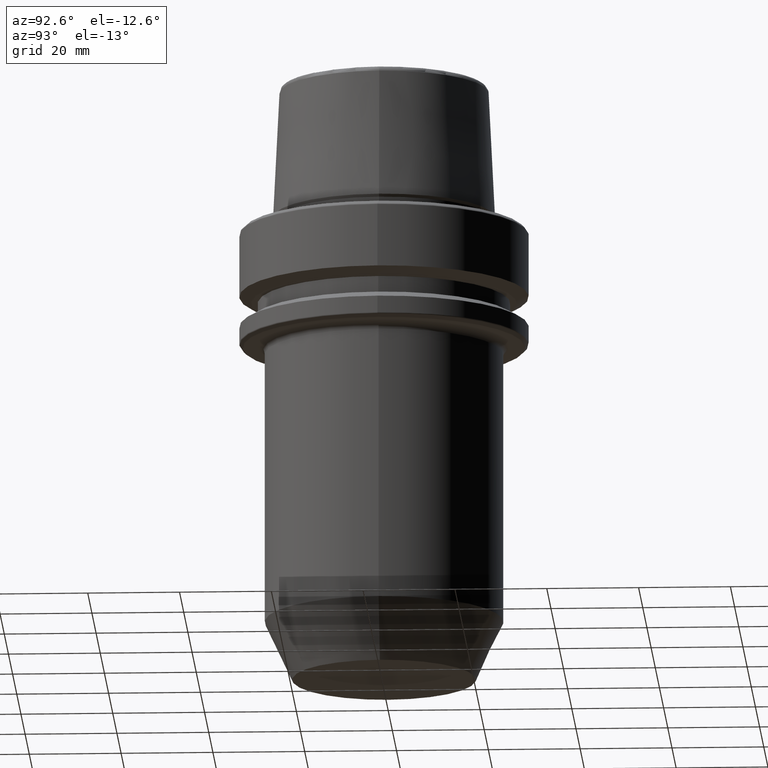
[diagram: clean part render]
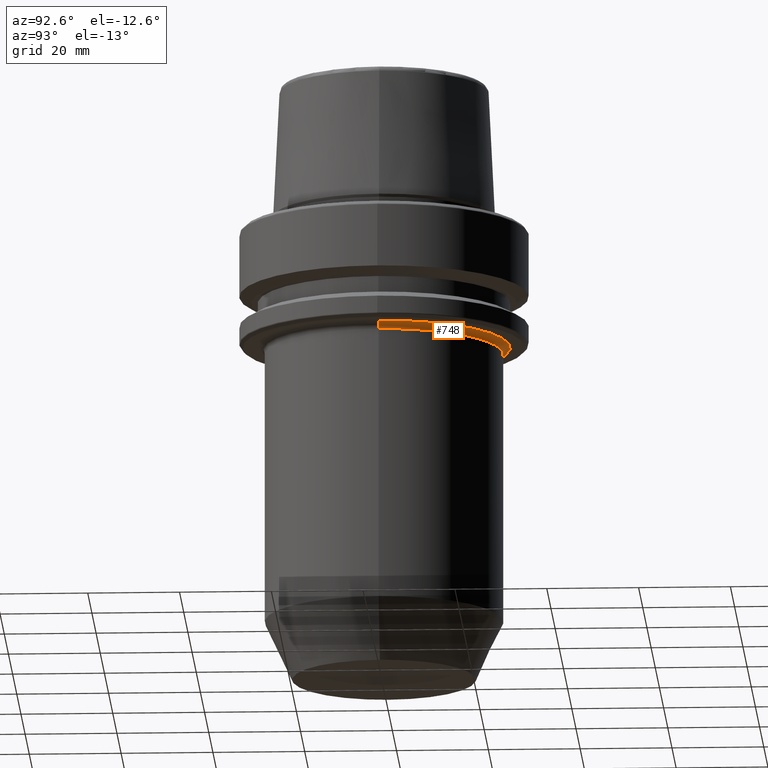
[diagram: same view with one face highlighted and labeled with its STEP entity id]
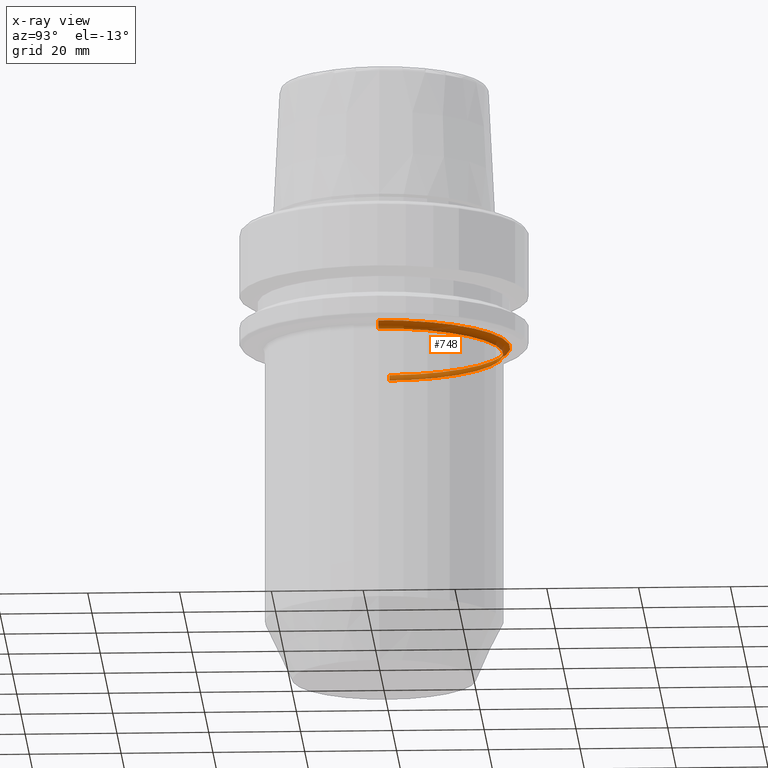
[diagram: x-ray of the same camera — body ghosted, the highlighted face saturated]
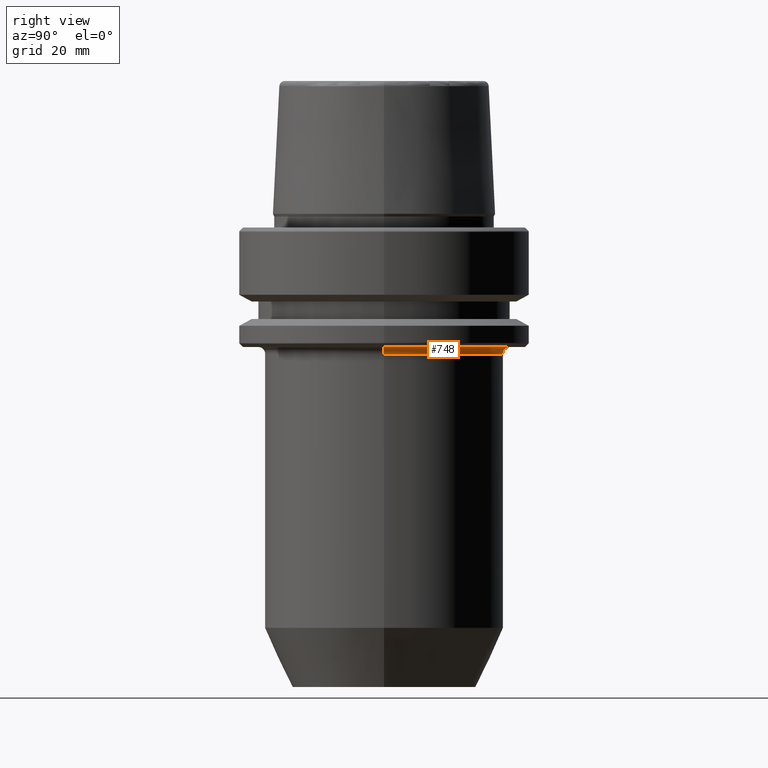
[diagram: same view with one face highlighted and labeled with its STEP entity id]
A machine part, auxiliary view. The second image highlights one B-rep face of the part: STEP entity #748.
The next image is the same camera in x-ray: the body ghosted, the highlighted face saturated — about 31% of this face is hidden behind the body in this view.
A second angle (right view) of the same face is appended — the face is thin or edge-on in the first view.
In plain terms, the highlighted toroidal blend (fillet) surface has major radius 27.5 mm and minor (blend) radius 1.5 mm.
Its self-contained STEP definition (entity closure, byte-faithful):
#68 = AXIS2_PLACEMENT_3D ( 'NONE', #809, #317, #412 ) ;
#136 = VERTEX_POINT ( 'NONE', #367 ) ;
#149 = CARTESIAN_POINT ( 'NONE',  ( 27.50000000000000000, 0.0000000000000000000, -26.00000000000001100 ) ) ;
#159 = DIRECTION ( 'NONE',  ( -1.000000000000000000, 1.224646799147352000E-016, 0.0000000000000000000 ) ) ;
#203 = CARTESIAN_POINT ( 'NONE',  ( 0.0000000000000000000, 0.0000000000000000000, -26.00000000000001100 ) ) ;
#224 = EDGE_CURVE ( 'NONE', #136, #345, #1004, .T. ) ;
#246 = AXIS2_PLACEMENT_3D ( 'NONE', #796, #351, #159 ) ;
#255 = DIRECTION ( 'NONE',  ( 0.0000000000000000000, 0.0000000000000000000, -1.000000000000000000 ) ) ;
#273 = EDGE_CURVE ( 'NONE', #1008, #136, #957, .T. ) ;
#292 = CIRCLE ( 'NONE', #68, 26.00000000000000000 ) ;
#317 = DIRECTION ( 'NONE',  ( 0.0000000000000000000, 0.0000000000000000000, -1.000000000000000000 ) ) ;
#321 = TOROIDAL_SURFACE ( 'NONE', #991, 27.50000000000000000, 1.500000000000000000 ) ;
#345 = VERTEX_POINT ( 'NONE', #661 ) ;
#351 = DIRECTION ( 'NONE',  ( 1.224646799147353200E-016, 1.000000000000000000, 0.0000000000000000000 ) ) ;
#367 = CARTESIAN_POINT ( 'NONE',  ( -27.50000000000000000, 3.367778697655221300E-015, -26.00000000000001100 ) ) ;
#374 = ORIENTED_EDGE ( 'NONE', *, *, #770, .T. ) ;
#412 = DIRECTION ( 'NONE',  ( 1.000000000000000000, 0.0000000000000000000, 0.0000000000000000000 ) ) ;
#464 = CARTESIAN_POINT ( 'NONE',  ( 0.0000000000000000000, 0.0000000000000000000, -27.50000000000001100 ) ) ;
#538 = DIRECTION ( 'NONE',  ( 0.0000000000000000000, -1.000000000000000000, 0.0000000000000000000 ) ) ;
#560 = DIRECTION ( 'NONE',  ( 1.000000000000000000, 0.0000000000000000000, 0.0000000000000000000 ) ) ;
#576 = ORIENTED_EDGE ( 'NONE', *, *, #224, .F. ) ;
#579 = EDGE_LOOP ( 'NONE', ( #576, #1240, #374, #1147 ) ) ;
#661 = CARTESIAN_POINT ( 'NONE',  ( -26.00000000000000000, 3.184081677783118200E-015, -27.50000000000001100 ) ) ;
#735 = AXIS2_PLACEMENT_3D ( 'NONE', #203, #803, #560 ) ;
#748 = ADVANCED_FACE ( 'NONE', ( #889 ), #321, .F. ) ;
#755 = CARTESIAN_POINT ( 'NONE',  ( 26.00000000000000000, 0.0000000000000000000, -27.50000000000001100 ) ) ;
#770 = EDGE_CURVE ( 'NONE', #1008, #1021, #1028, .T. ) ;
#796 = CARTESIAN_POINT ( 'NONE',  ( -27.50000000000000000, 3.367778697655221300E-015, -27.50000000000001100 ) ) ;
#803 = DIRECTION ( 'NONE',  ( -0.0000000000000000000, -0.0000000000000000000, 1.000000000000000000 ) ) ;
#809 = CARTESIAN_POINT ( 'NONE',  ( 0.0000000000000000000, 0.0000000000000000000, -27.50000000000001100 ) ) ;
#889 = FACE_OUTER_BOUND ( 'NONE', #579, .T. ) ;
#900 = AXIS2_PLACEMENT_3D ( 'NONE', #903, #538, #255 ) ;
#903 = CARTESIAN_POINT ( 'NONE',  ( 27.50000000000000000, 0.0000000000000000000, -27.50000000000001100 ) ) ;
#957 = CIRCLE ( 'NONE', #735, 27.50000000000000000 ) ;
#991 = AXIS2_PLACEMENT_3D ( 'NONE', #464, #1238, #1164 ) ;
#1004 = CIRCLE ( 'NONE', #246, 1.500000000000001300 ) ;
#1008 = VERTEX_POINT ( 'NONE', #149 ) ;
#1021 = VERTEX_POINT ( 'NONE', #755 ) ;
#1028 = CIRCLE ( 'NONE', #900, 1.500000000000001300 ) ;
#1036 = EDGE_CURVE ( 'NONE', #345, #1021, #292, .T. ) ;
#1147 = ORIENTED_EDGE ( 'NONE', *, *, #1036, .F. ) ;
#1164 = DIRECTION ( 'NONE',  ( 1.000000000000000000, 0.0000000000000000000, 0.0000000000000000000 ) ) ;
#1238 = DIRECTION ( 'NONE',  ( -0.0000000000000000000, -0.0000000000000000000, 1.000000000000000000 ) ) ;
#1240 = ORIENTED_EDGE ( 'NONE', *, *, #273, .F. ) ;